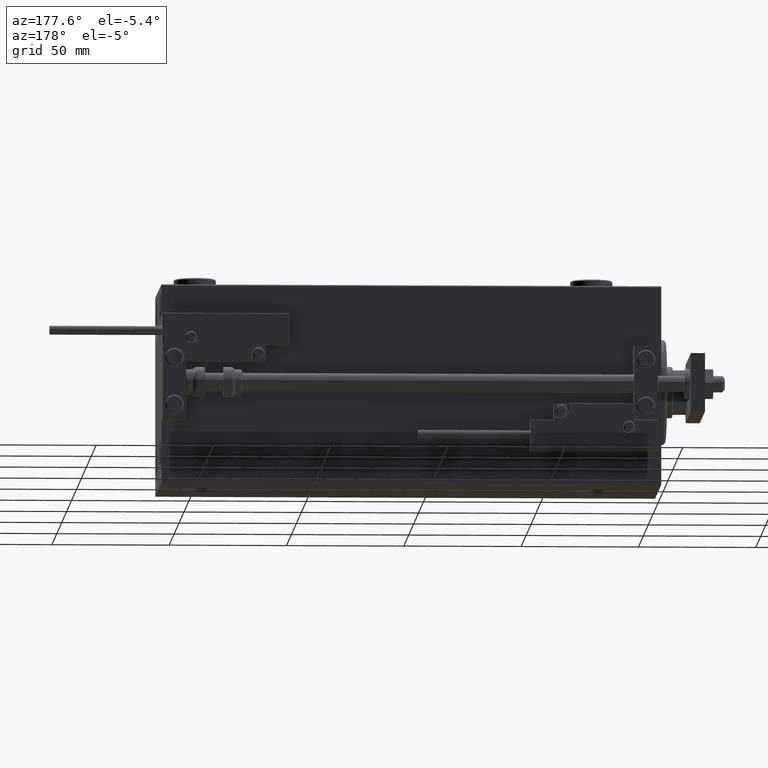
[diagram: clean part render]
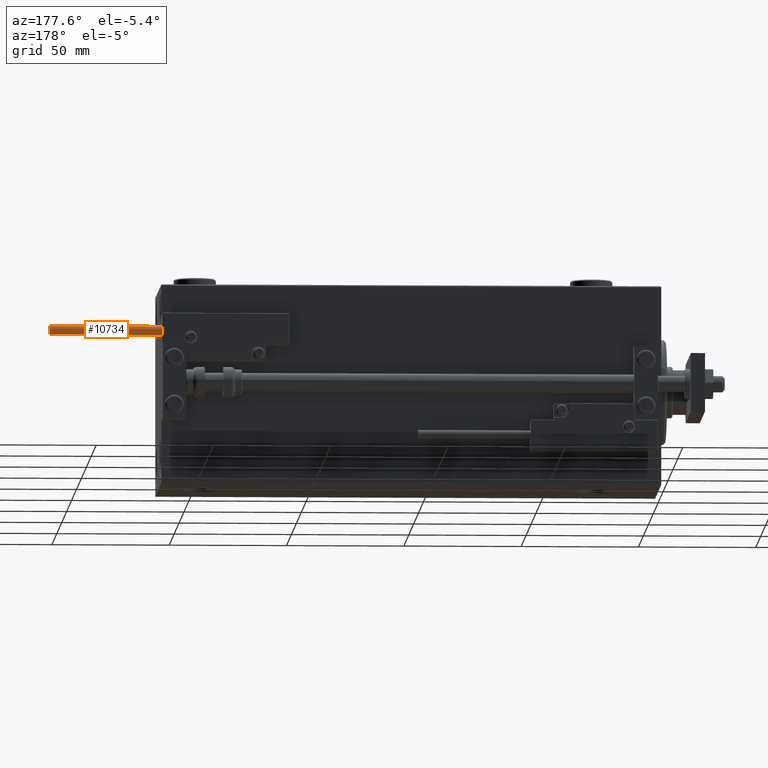
[diagram: same view with one face highlighted and labeled with its STEP entity id]
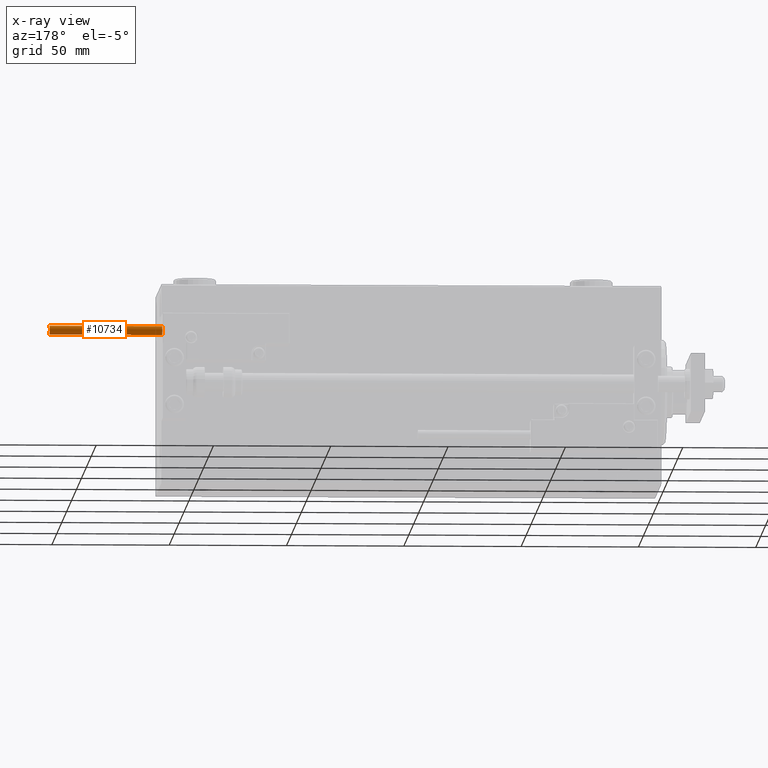
[diagram: x-ray of the same camera — body ghosted, the highlighted face saturated]
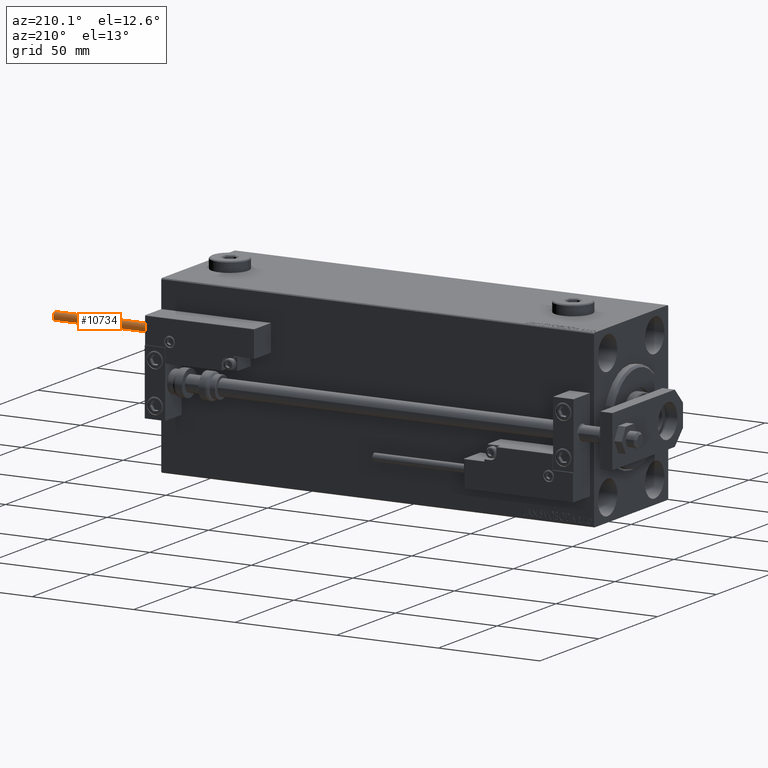
[diagram: same view with one face highlighted and labeled with its STEP entity id]
A machine part, auxiliary view. The second image highlights one B-rep face of the part: STEP entity #10734.
The next image is the same camera in x-ray: the body ghosted, the highlighted face saturated — about 0% of this face is hidden behind the body in this view.
A second angle (auxiliary view) of the same face is appended — the face is thin or edge-on in the first view.
In plain terms, the highlighted cylindrical surface (edge-blend (fillet) strip) has radius 1.9 mm, axis along (-1, -0, 0).
Its self-contained STEP definition (entity closure, byte-faithful):
#1925 = VERTEX_POINT ( 'NONE', #8254 ) ;
#4416 = CARTESIAN_POINT ( 'NONE',  ( 0.000000000000000000, 0.000000000000000000, 0.000000000000000000 ) ) ;
#4830 = EDGE_CURVE ( 'NONE', #46502, #33044, #23685, .T. ) ;
#5804 = DIRECTION ( 'NONE',  ( -0.000000000000000000, -0.000000000000000000, -1.000000000000000000 ) ) ;
#7958 = ORIENTED_EDGE ( 'NONE', *, *, #17925, .T. ) ;
#8254 = CARTESIAN_POINT ( 'NONE',  ( 1.899999999999999467, 2.326828918379970872E-16, 48.00000000000000000 ) ) ;
#9984 = CARTESIAN_POINT ( 'NONE',  ( 0.000000000000000000, 0.000000000000000000, 48.00000000000000000 ) ) ;
#10734 = ADVANCED_FACE ( 'NONE', ( #22210 ), #28551, .T. ) ;
#14663 = AXIS2_PLACEMENT_3D ( 'NONE', #22809, #50444, #30121 ) ;
#16737 = EDGE_CURVE ( 'NONE', #1925, #46502, #30434, .T. ) ;
#17668 = VECTOR ( 'NONE', #19029, 1000.000000000000000 ) ;
#17925 = EDGE_CURVE ( 'NONE', #1925, #43894, #23525, .T. ) ;
#19029 = DIRECTION ( 'NONE',  ( -0.000000000000000000, -0.000000000000000000, -1.000000000000000000 ) ) ;
#21072 = DIRECTION ( 'NONE',  ( 1.000000000000000000, 0.000000000000000000, 0.000000000000000000 ) ) ;
#21949 = DIRECTION ( 'NONE',  ( -1.000000000000000000, 0.000000000000000000, 0.000000000000000000 ) ) ;
#22210 = FACE_OUTER_BOUND ( 'NONE', #44414, .T. ) ;
#22809 = CARTESIAN_POINT ( 'NONE',  ( 0.000000000000000000, 0.000000000000000000, 48.00000000000000000 ) ) ;
#23444 = CARTESIAN_POINT ( 'NONE',  ( -1.899999999999999467, 0.000000000000000000, 0.000000000000000000 ) ) ;
#23525 = LINE ( 'NONE', #27951, #43795 ) ;
#23685 = LINE ( 'NONE', #39576, #17668 ) ;
#27951 = CARTESIAN_POINT ( 'NONE',  ( 1.899999999999999467, 2.326828918379970872E-16, 48.00000000000000000 ) ) ;
#28551 = CYLINDRICAL_SURFACE ( 'NONE', #40358, 1.899999999999999467 ) ;
#29549 = ORIENTED_EDGE ( 'NONE', *, *, #16737, .F. ) ;
#30121 = DIRECTION ( 'NONE',  ( 1.000000000000000000, 0.000000000000000000, 0.000000000000000000 ) ) ;
#30434 = CIRCLE ( 'NONE', #14663, 1.899999999999999467 ) ;
#31780 = CIRCLE ( 'NONE', #50100, 1.899999999999999467 ) ;
#32534 = DIRECTION ( 'NONE',  ( 0.000000000000000000, 0.000000000000000000, 1.000000000000000000 ) ) ;
#33044 = VERTEX_POINT ( 'NONE', #23444 ) ;
#35155 = EDGE_CURVE ( 'NONE', #43894, #33044, #31780, .T. ) ;
#39411 = DIRECTION ( 'NONE',  ( -0.000000000000000000, -0.000000000000000000, -1.000000000000000000 ) ) ;
#39576 = CARTESIAN_POINT ( 'NONE',  ( -1.899999999999999467, 0.000000000000000000, 48.00000000000000000 ) ) ;
#40081 = CARTESIAN_POINT ( 'NONE',  ( -1.899999999999999467, 0.000000000000000000, 48.00000000000000000 ) ) ;
#40358 = AXIS2_PLACEMENT_3D ( 'NONE', #9984, #5804, #21949 ) ;
#40955 = CARTESIAN_POINT ( 'NONE',  ( 1.899999999999999467, 2.326828918379970872E-16, 0.000000000000000000 ) ) ;
#43795 = VECTOR ( 'NONE', #39411, 1000.000000000000000 ) ;
#43894 = VERTEX_POINT ( 'NONE', #40955 ) ;
#44414 = EDGE_LOOP ( 'NONE', ( #29549, #7958, #47359, #48584 ) ) ;
#46502 = VERTEX_POINT ( 'NONE', #40081 ) ;
#47359 = ORIENTED_EDGE ( 'NONE', *, *, #35155, .T. ) ;
#48584 = ORIENTED_EDGE ( 'NONE', *, *, #4830, .F. ) ;
#50100 = AXIS2_PLACEMENT_3D ( 'NONE', #4416, #32534, #21072 ) ;
#50444 = DIRECTION ( 'NONE',  ( 0.000000000000000000, 0.000000000000000000, 1.000000000000000000 ) ) ;